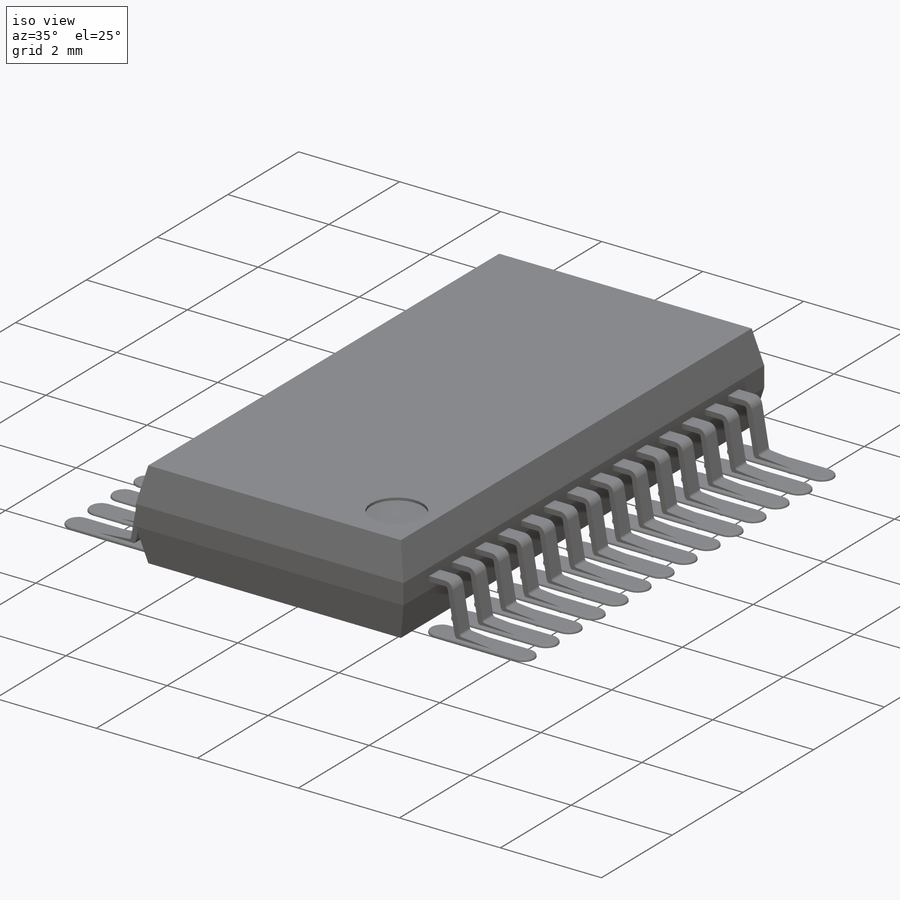
[diagram: iso view]
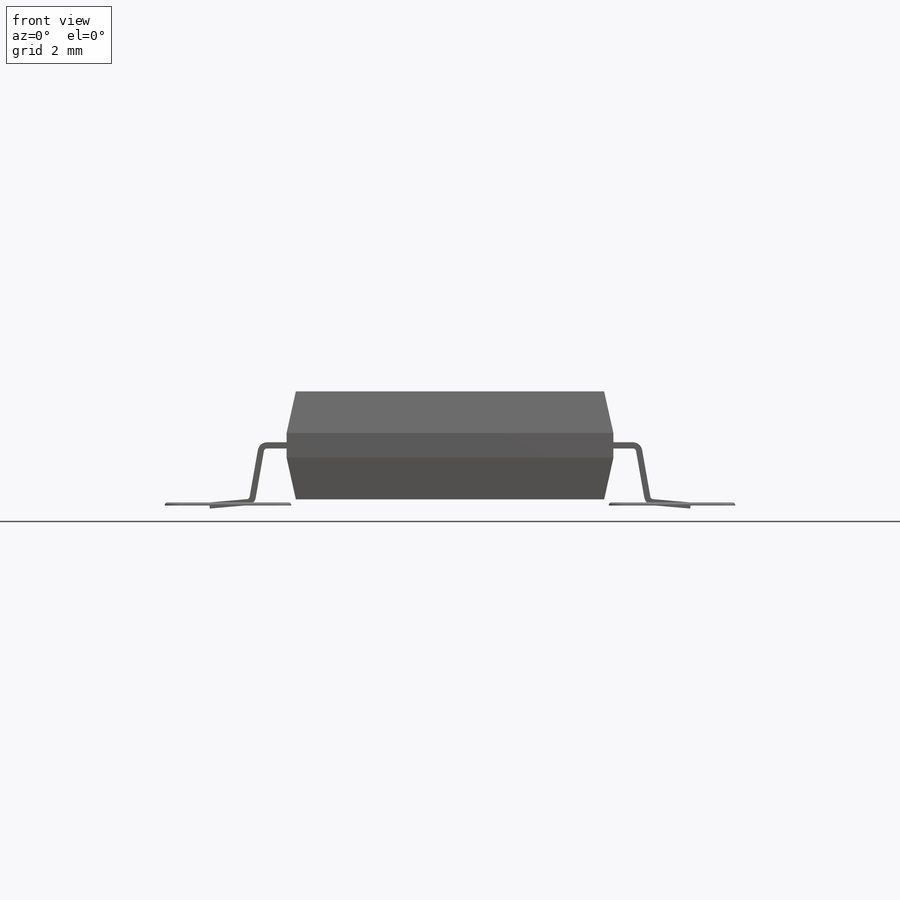
[diagram: front view]
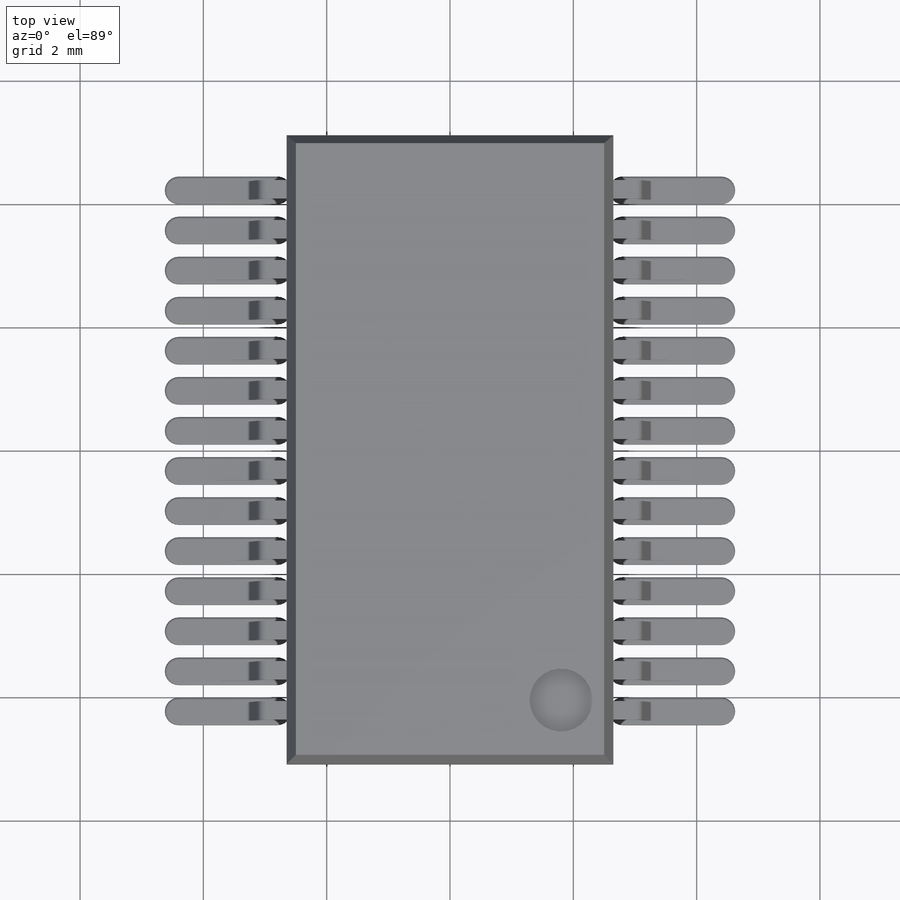
[diagram: top view]
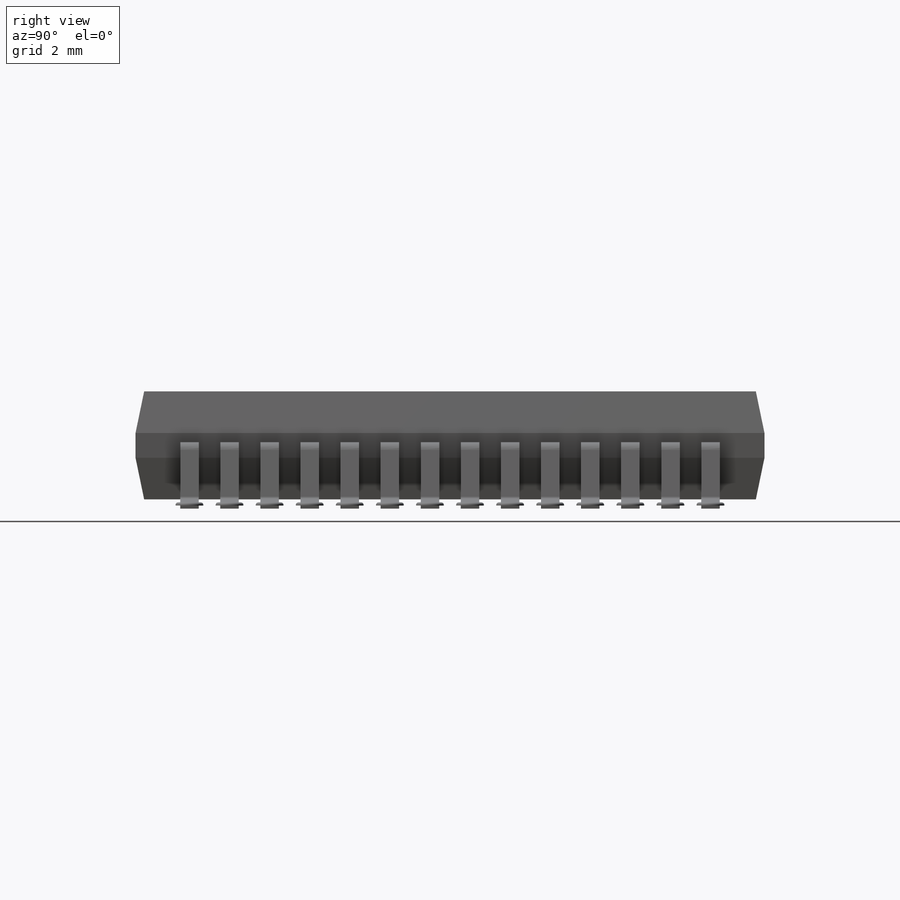
[diagram: right view]
SOLIDWORKS PART (.sldprt)
format: sldprt  version: not decoded by parser v0  size: 835,584 bytes
history: native  units: mm
features: sketch x5, plane x3, extrude x2, cut_extrude x2, material x1, fillet x1, pattern_linear x1 (+11 scaffold rows collapsed)
feature tree (26):
  scaffold x11  (default folders/planes/origin — collapsed)
  material  "Material <not specified>"
  plane  "Plane1"
  plane  "Plane5"  Offset=4.225mm
  sketch  "Sketch1"  dims[c1.D5=4.0mm c1.D1=1.75mm c1.D2=5.3mm c1.D3=2.65mm c1.D4=0.1mm c1.D6=5.0mm c2.D5=0.4mm c2.D7=2.5mm c2.D8=0.15mm]
  extrude  "Boss-Extrude1"  Depth=10.2mm
  plane  "Plane2"
  sketch  "Sketch4"  dims[D1=0.14mm D2=0.2mm D3=0.2mm D4=0.14mm]
  cut_extrude  "Cut-Extrude2"  [1 undecoded]
  sketch  "Sketch2"  dims[c1.D8=0.1mm c1.D1=7.8mm c1.D2=6.0mm c1.D3=3.0mm c1.D4=0.925mm c1.D5=5.0mm c2.D4=0.875mm c2.D5=0.875mm c2.D6=5.5mm c3.D4=0.975mm c3.D6=0.7mm c3.D7=1.1mm c3.D2=0.7mm c3.D3=~0.25592mm c4.D3=5.0deg c4.D7=5.83mm c5.D7=5.0deg c5.D9=3.9mm c5.D2=~0.778221mm c6.D2=10.0deg c6.D6=~0.802218mm c7.D6=10.0deg c7.D10=0.7mm c7.D11=0.7mm c7.D1=0.3mm c7.D5=0.1mm c8.D6=1.0mm c8.D7=0.0001mm]
  sketch  "Sketch5"  dims[D1=0.45mm D2=1.6mm D3=1.6mm D4=3.6mm D5=3.6mm]
  extrude  "Boss-Extrude2"  Depth=0.05mm
  fillet  "Fillet1"  Radius=0.04mm
  pattern_linear  "LPattern1"  Count1=14 Count2=1 Spacing1=0.65mm Spacing2=10mm
  sketch  "Sketch3"  dims[c1.D1=0.8mm c1.D3=1.02mm c2.D1=1.8mm c2.D2=0.15mm]
  cut_extrude  "Cut-Extrude1"  Depth=0.05mm
decode coverage: 10 of 11 modeling features carry decoded parameters
note: ~ marks probable driven/reference dimensions
note: 1 parameter value undecoded
note: suppression state not decoded; provenance and decode notes live in map.json
